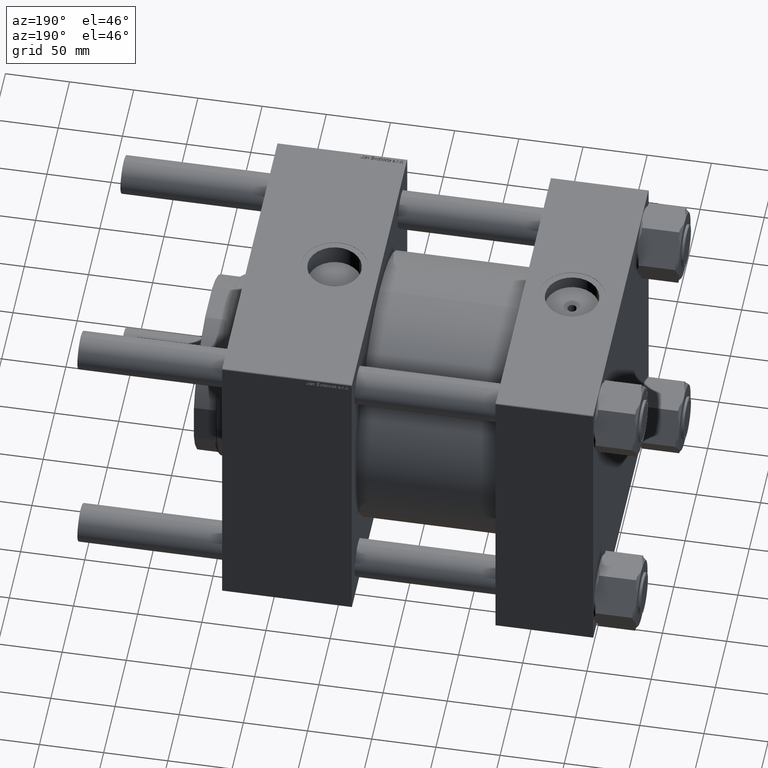
[diagram: clean part render]
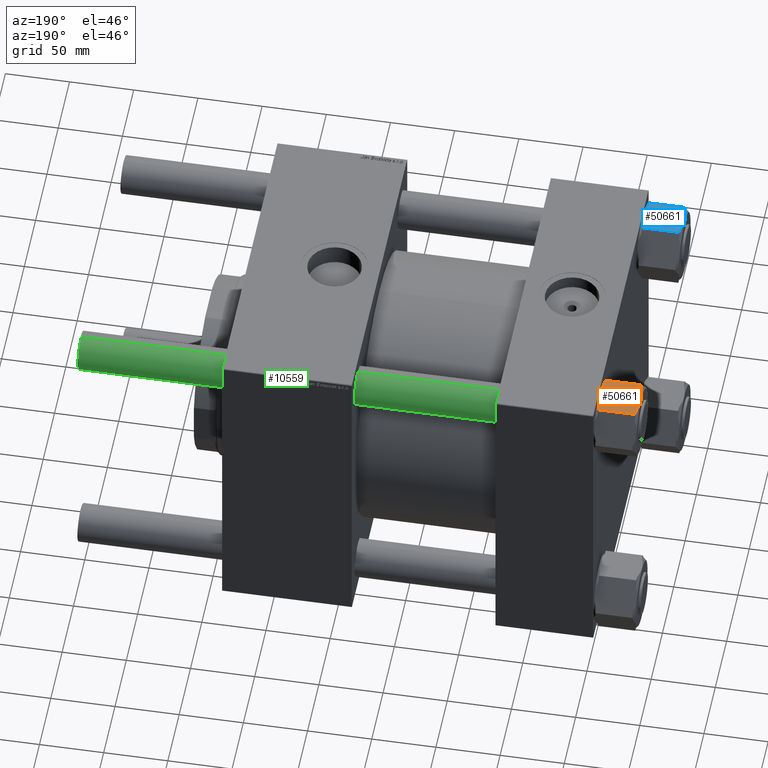
[diagram: same view with three faces highlighted in distinct colors, each labeled with its STEP entity id]
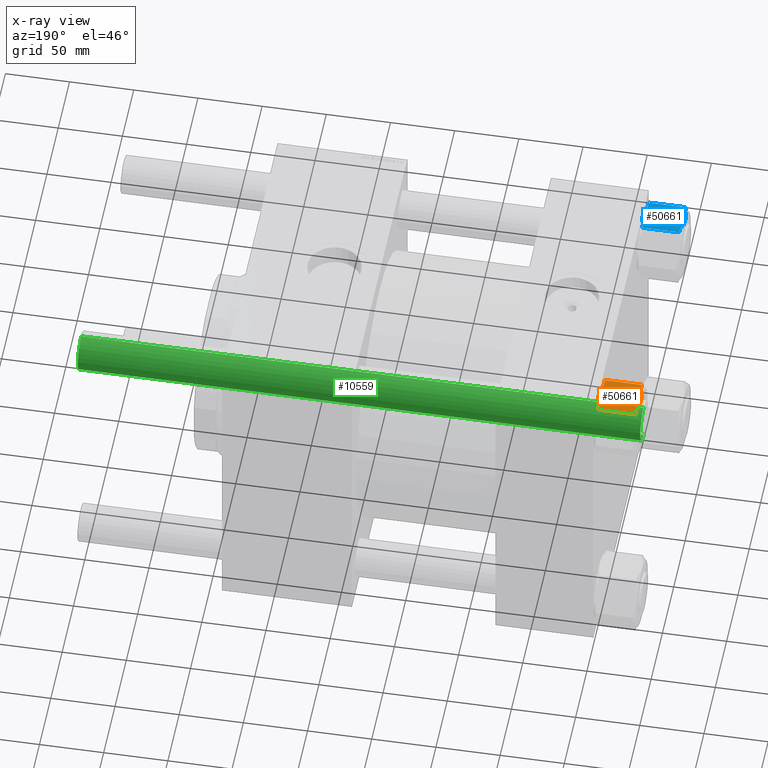
[diagram: x-ray of the same camera — body ghosted, the three highlighted faces saturated]
A machine part, auxiliary view with three faces highlighted in distinct colors.
The next image is the same camera in x-ray (body ghosted, the three faces saturated) — at least one of them is partly hidden behind the body in this view.
Their STEP definitions:

[orange] entity #50661 — the highlighted planar face has unit normal (-0, -0.0859, -0.9963).
#571 = CARTESIAN_POINT ( 'NONE',  ( 3.004629197474319246E-15, -25.65167246009509228, 0.000000000000000000 ) ) ;
#1403 = ORIENTED_EDGE ( 'NONE', *, *, #30554, .F. ) ;
#1675 = CARTESIAN_POINT ( 'NONE',  ( 8.224817531128856274, -25.65167246009507807, -31.71672309237984777 ) ) ;
#1735 = PLANE ( 'NONE',  #51795 ) ;
#2506 = CARTESIAN_POINT ( 'NONE',  ( -6.099955639268604735, -25.65167246009508162, -0.7018505742978484729 ) ) ;
#4588 = LINE ( 'NONE', #22280, #19650 ) ;
#4814 = DIRECTION ( 'NONE',  ( -0.000000000000000000, -0.000000000000000000, 1.000000000000000000 ) ) ;
#5900 = CARTESIAN_POINT ( 'NONE',  ( 14.81000000000000760, -25.65167246009507451, -2.000000000000001776 ) ) ;
#6101 = ORIENTED_EDGE ( 'NONE', *, *, #11622, .F. ) ;
#6303 = CARTESIAN_POINT ( 'NONE',  ( 3.520663271550341200, -25.65167246009507807, -32.81439241817540875 ) ) ;
#7232 = CARTESIAN_POINT ( 'NONE',  ( 8.669316105214891266, -25.65167246009508162, -1.381753344690851870 ) ) ;
#8026 = CARTESIAN_POINT ( 'NONE',  ( -0.4430237275646163875, -25.65167246009507807, -33.00000000000001421 ) ) ;
#8306 = ORIENTED_EDGE ( 'NONE', *, *, #36981, .F. ) ;
#8787 = EDGE_CURVE ( 'NONE', #10520, #10960, #33301, .T. ) ;
#9508 = DIRECTION ( 'NONE',  ( 1.000000000000000000, 1.171319024967458697E-16, -0.000000000000000000 ) ) ;
#9674 = LINE ( 'NONE', #5900, #9699 ) ;
#9699 = VECTOR ( 'NONE', #31733, 1000.000000000000000 ) ;
#10520 = VERTEX_POINT ( 'NONE', #29928 ) ;
#10960 = VERTEX_POINT ( 'NONE', #33915 ) ;
#11622 = EDGE_CURVE ( 'NONE', #19183, #15396, #44728, .T. ) ;
#11758 = CARTESIAN_POINT ( 'NONE',  ( -8.224817531128843839, -25.65167246009508517, -1.283276907620148899 ) ) ;
#12952 = CARTESIAN_POINT ( 'NONE',  ( -3.538636345949318418, -25.65167246009508517, -32.77183165578529866 ) ) ;
#13653 = ORIENTED_EDGE ( 'NONE', *, *, #33673, .F. ) ;
#13729 = CARTESIAN_POINT ( 'NONE',  ( 2.220425330063965585, -25.65167246009507807, -0.09221160706299975918 ) ) ;
#13806 = CARTESIAN_POINT ( 'NONE',  ( -14.81000000000000583, -25.65167246009507807, -33.00000000000000000 ) ) ;
#14353 = VECTOR ( 'NONE', #31359, 1000.000000000000000 ) ;
#14706 = CARTESIAN_POINT ( 'NONE',  ( 10.32505156599140683, -25.65167246009507451, -31.00000000000000000 ) ) ;
#15019 = CARTESIAN_POINT ( 'NONE',  ( 9.909542374435250878, -25.65167246009507807, -31.15514988596627433 ) ) ;
#15302 = CARTESIAN_POINT ( 'NONE',  ( 6.953324275881632488, -25.65167246009506385, -32.08667077423702807 ) ) ;
#15396 = VERTEX_POINT ( 'NONE', #30345 ) ;
#15557 = CARTESIAN_POINT ( 'NONE',  ( -9.909542374435234890, -25.65167246009508162, -1.844850114033720345 ) ) ;
#15826 = EDGE_CURVE ( 'NONE', #42296, #27409, #4588, .T. ) ;
#15893 = DIRECTION ( 'NONE',  ( -0.000000000000000000, -0.000000000000000000, 1.000000000000000000 ) ) ;
#15935 = CARTESIAN_POINT ( 'NONE',  ( -10.32505156599139973, -25.65167246009507451, -2.000000000000000000 ) ) ;
#16408 = CARTESIAN_POINT ( 'NONE',  ( -3.520663271550332318, -25.65167246009508162, -0.1856075818245811471 ) ) ;
#17039 = EDGE_CURVE ( 'NONE', #34562, #49997, #24954, .T. ) ;
#18079 = CARTESIAN_POINT ( 'NONE',  ( 3.004629197474319246E-15, -25.65167246009509228, 0.000000000000000000 ) ) ;
#19183 = VERTEX_POINT ( 'NONE', #571 ) ;
#19458 = CARTESIAN_POINT ( 'NONE',  ( 14.81000000000000760, -25.65167246009507451, -31.00000000000000000 ) ) ;
#19650 = VECTOR ( 'NONE', #9508, 1000.000000000000000 ) ;
#20307 = CARTESIAN_POINT ( 'NONE',  ( 6.986203245587496724, -25.65167246009508162, -0.8809313092508250786 ) ) ;
#22280 = CARTESIAN_POINT ( 'NONE',  ( 14.81000000000000760, -25.65167246009507451, -2.000000000000001776 ) ) ;
#22852 = CARTESIAN_POINT ( 'NONE',  ( 3.004629197474318457E-15, -25.65167246009508517, -33.00000000000000000 ) ) ;
#23511 = DIRECTION ( 'NONE',  ( -1.000000000000000000, -1.171319024967458697E-16, 0.000000000000000000 ) ) ;
#23998 = CARTESIAN_POINT ( 'NONE',  ( 6.099955639268611840, -25.65167246009507096, -32.29814942570214242 ) ) ;
#24477 = ORIENTED_EDGE ( 'NONE', *, *, #45857, .F. ) ;
#24954 = B_SPLINE_CURVE_WITH_KNOTS ( 'NONE', 3,
 ( #34991, #8026, #43696, #47772, #39334, #12952, #47499, #52132, #52695, #30093 ),
 .UNSPECIFIED., .F., .F.,
 ( 4, 2, 2, 2, 4 ),
 ( 0.05238037947086572610, 0.05369742002259651065, 0.05501446057432728826, 0.05764854167778885735, 0.06291670388471200248 ),
 .UNSPECIFIED. ) ;
#25550 = CARTESIAN_POINT ( 'NONE',  ( -10.32505156599139973, -25.65167246009507451, -31.00000000000000000 ) ) ;
#27409 = VERTEX_POINT ( 'NONE', #15935 ) ;
#29402 = ORIENTED_EDGE ( 'NONE', *, *, #53433, .F. ) ;
#29928 = CARTESIAN_POINT ( 'NONE',  ( 14.81000000000000760, -25.65167246009507451, -31.00000000000000000 ) ) ;
#30093 = CARTESIAN_POINT ( 'NONE',  ( -10.32505156599139973, -25.65167246009507451, -31.00000000000000000 ) ) ;
#30345 = CARTESIAN_POINT ( 'NONE',  ( 10.32505156599140683, -25.65167246009507451, -2.000000000000000000 ) ) ;
#30554 = EDGE_CURVE ( 'NONE', #27409, #19183, #56427, .T. ) ;
#31133 = CARTESIAN_POINT ( 'NONE',  ( 0.4430237275646299322, -25.65167246009507807, 1.209111297773939011E-14 ) ) ;
#31359 = DIRECTION ( 'NONE',  ( -1.000000000000000000, -1.171319024967458697E-16, 0.000000000000000000 ) ) ;
#31421 = CARTESIAN_POINT ( 'NONE',  ( 3.538636345949333517, -25.65167246009507807, -0.2281683442147109386 ) ) ;
#31733 = DIRECTION ( 'NONE',  ( 1.000000000000000000, 1.171319024967458697E-16, -0.000000000000000000 ) ) ;
#31904 = DIRECTION ( 'NONE',  ( -1.171319024967458697E-16, 1.000000000000000000, 0.000000000000000000 ) ) ;
#32202 = VECTOR ( 'NONE', #4814, 1000.000000000000000 ) ;
#32714 = CARTESIAN_POINT ( 'NONE',  ( 9.489356881974131852, -25.65167246009507451, -31.30393777142523248 ) ) ;
#32999 = CARTESIAN_POINT ( 'NONE',  ( 10.32505156599140683, -25.65167246009507451, -31.00000000000000000 ) ) ;
#33301 = LINE ( 'NONE', #55631, #45356 ) ;
#33673 = EDGE_CURVE ( 'NONE', #10520, #47778, #39479, .T. ) ;
#33915 = CARTESIAN_POINT ( 'NONE',  ( 14.81000000000000760, -25.65167246009507451, -2.000000000000001776 ) ) ;
#34562 = VERTEX_POINT ( 'NONE', #22852 ) ;
#34991 = CARTESIAN_POINT ( 'NONE',  ( 3.004629197474318457E-15, -25.65167246009508517, -33.00000000000000000 ) ) ;
#35306 = CARTESIAN_POINT ( 'NONE',  ( -14.81000000000000583, -25.65167246009507807, -31.00000000000000000 ) ) ;
#35970 = FACE_OUTER_BOUND ( 'NONE', #37940, .T. ) ;
#36925 = CARTESIAN_POINT ( 'NONE',  ( 10.32505156599140683, -25.65167246009507451, -2.000000000000000000 ) ) ;
#36981 = EDGE_CURVE ( 'NONE', #15396, #10960, #9674, .T. ) ;
#37883 = CARTESIAN_POINT ( 'NONE',  ( -9.489356881974121194, -25.65167246009507451, -1.696062228574763742 ) ) ;
#37940 = EDGE_LOOP ( 'NONE', ( #13653, #49119, #8306, #6101, #1403, #42270, #24477, #51728, #47194, #29402 ) ) ;
#38164 = CARTESIAN_POINT ( 'NONE',  ( -6.953324275881620053, -25.65167246009508162, -0.9133292257629657129 ) ) ;
#39334 = CARTESIAN_POINT ( 'NONE',  ( -2.220425330063951375, -25.65167246009507807, -32.90778839293698610 ) ) ;
#39479 = LINE ( 'NONE', #56911, #14353 ) ;
#39806 = CARTESIAN_POINT ( 'NONE',  ( -14.81000000000000583, -25.65167246009507807, -2.000000000000001776 ) ) ;
#41412 = CARTESIAN_POINT ( 'NONE',  ( 8.647222686001271086, -25.65167246009507451, -31.58462314271101690 ) ) ;
#41790 = EDGE_CURVE ( 'NONE', #49997, #56199, #50495, .T. ) ;
#42270 = ORIENTED_EDGE ( 'NONE', *, *, #15826, .F. ) ;
#42296 = VERTEX_POINT ( 'NONE', #39806 ) ;
#43696 = CARTESIAN_POINT ( 'NONE',  ( -0.8893174470413348631, -25.65167246009507807, -32.98842907433984806 ) ) ;
#44462 = CARTESIAN_POINT ( 'NONE',  ( 1.778491183643254647, -25.65167246009507807, -0.05774617287276616329 ) ) ;
#44728 = B_SPLINE_CURVE_WITH_KNOTS ( 'NONE', 3,
 ( #18079, #31133, #48826, #44462, #13729, #31421, #49123, #20307, #7232, #36925 ),
 .UNSPECIFIED., .F., .F.,
 ( 4, 2, 2, 2, 4 ),
 ( 0.05238037947086573998, 0.05369742002259652452, 0.05501446057432730907, 0.05764854167778887817, 0.06291670388471201636 ),
 .UNSPECIFIED. ) ;
#45025 = VECTOR ( 'NONE', #23511, 1000.000000000000000 ) ;
#45356 = VECTOR ( 'NONE', #15893, 1000.000000000000000 ) ;
#45857 = EDGE_CURVE ( 'NONE', #56199, #42296, #49482, .T. ) ;
#46307 = CARTESIAN_POINT ( 'NONE',  ( -1.775396627771425262, -25.65167246009507451, 1.230870633041182272E-14 ) ) ;
#46626 = CARTESIAN_POINT ( 'NONE',  ( 3.004629197474318457E-15, -25.65167246009508517, -33.00000000000000000 ) ) ;
#47152 = CARTESIAN_POINT ( 'NONE',  ( -10.32505156599139973, -25.65167246009507451, -2.000000000000000000 ) ) ;
#47194 = ORIENTED_EDGE ( 'NONE', *, *, #17039, .F. ) ;
#47499 = CARTESIAN_POINT ( 'NONE',  ( -4.407316998488252757, -25.65167246009508162, -32.63775935819370488 ) ) ;
#47772 = CARTESIAN_POINT ( 'NONE',  ( -1.778491183643239326, -25.65167246009507807, -32.94225382712721739 ) ) ;
#47778 = VERTEX_POINT ( 'NONE', #14706 ) ;
#48826 = CARTESIAN_POINT ( 'NONE',  ( 0.8893174470413506283, -25.65167246009507451, -0.01157092566015176412 ) ) ;
#49119 = ORIENTED_EDGE ( 'NONE', *, *, #8787, .T. ) ;
#49123 = CARTESIAN_POINT ( 'NONE',  ( 4.407316998488265192, -25.65167246009507807, -0.3622406418062982247 ) ) ;
#49482 = LINE ( 'NONE', #13806, #32202 ) ;
#49891 = DIRECTION ( 'NONE',  ( -1.000000000000000000, -1.171319024967458697E-16, 0.000000000000000000 ) ) ;
#49997 = VERTEX_POINT ( 'NONE', #25550 ) ;
#50184 = CARTESIAN_POINT ( 'NONE',  ( 14.81000000000000760, -25.65167246009507451, -33.00000000000000000 ) ) ;
#50495 = LINE ( 'NONE', #19458, #45025 ) ;
#50661 = ADVANCED_FACE ( 'NONE', ( #35970 ), #1735, .F. ) ;
#50663 = CARTESIAN_POINT ( 'NONE',  ( 3.004629197474319246E-15, -25.65167246009509228, 0.000000000000000000 ) ) ;
#50697 = CARTESIAN_POINT ( 'NONE',  ( 1.775396627771436142, -25.65167246009507451, -33.00000000000000711 ) ) ;
#51728 = ORIENTED_EDGE ( 'NONE', *, *, #41790, .F. ) ;
#51795 = AXIS2_PLACEMENT_3D ( 'NONE', #50184, #31904, #49891 ) ;
#52132 = CARTESIAN_POINT ( 'NONE',  ( -6.986203245587481625, -25.65167246009507451, -32.11906869074918092 ) ) ;
#52156 = B_SPLINE_CURVE_WITH_KNOTS ( 'NONE', 3,
 ( #32999, #15019, #32714, #41412, #1675, #15302, #23998, #6303, #50697, #46626 ),
 .UNSPECIFIED., .F., .F.,
 ( 4, 2, 2, 2, 4 ),
 ( 0.04182442407301415616, 0.04314391849774560500, 0.04446341292247705385, 0.04710240177193994460, 0.05238037947086572610 ),
 .UNSPECIFIED. ) ;
#52695 = CARTESIAN_POINT ( 'NONE',  ( -8.669316105214878831, -25.65167246009508162, -31.61824665530915013 ) ) ;
#53433 = EDGE_CURVE ( 'NONE', #47778, #34562, #52156, .T. ) ;
#55631 = CARTESIAN_POINT ( 'NONE',  ( 14.81000000000000760, -25.65167246009507451, -33.00000000000000000 ) ) ;
#56145 = CARTESIAN_POINT ( 'NONE',  ( -8.647222686001263980, -25.65167246009507807, -1.415376857288984436 ) ) ;
#56199 = VERTEX_POINT ( 'NONE', #35306 ) ;
#56427 = B_SPLINE_CURVE_WITH_KNOTS ( 'NONE', 3,
 ( #47152, #15557, #37883, #56145, #11758, #38164, #2506, #16408, #46307, #50663 ),
 .UNSPECIFIED., .F., .F.,
 ( 4, 2, 2, 2, 4 ),
 ( 0.04182442407301416309, 0.04314391849774561194, 0.04446341292247706078, 0.04710240177193995154, 0.05238037947086573998 ),
 .UNSPECIFIED. ) ;
#56911 = CARTESIAN_POINT ( 'NONE',  ( 14.81000000000000760, -25.65167246009507451, -31.00000000000000000 ) ) ;

[blue] entity #50661 — the highlighted planar face has unit normal (-0, 0.0859, -0.9963).
#571 = CARTESIAN_POINT ( 'NONE',  ( 3.004629197474319246E-15, -25.65167246009509228, 0.000000000000000000 ) ) ;
#1403 = ORIENTED_EDGE ( 'NONE', *, *, #30554, .F. ) ;
#1675 = CARTESIAN_POINT ( 'NONE',  ( 8.224817531128856274, -25.65167246009507807, -31.71672309237984777 ) ) ;
#1735 = PLANE ( 'NONE',  #51795 ) ;
#2506 = CARTESIAN_POINT ( 'NONE',  ( -6.099955639268604735, -25.65167246009508162, -0.7018505742978484729 ) ) ;
#4588 = LINE ( 'NONE', #22280, #19650 ) ;
#4814 = DIRECTION ( 'NONE',  ( -0.000000000000000000, -0.000000000000000000, 1.000000000000000000 ) ) ;
#5900 = CARTESIAN_POINT ( 'NONE',  ( 14.81000000000000760, -25.65167246009507451, -2.000000000000001776 ) ) ;
#6101 = ORIENTED_EDGE ( 'NONE', *, *, #11622, .F. ) ;
#6303 = CARTESIAN_POINT ( 'NONE',  ( 3.520663271550341200, -25.65167246009507807, -32.81439241817540875 ) ) ;
#7232 = CARTESIAN_POINT ( 'NONE',  ( 8.669316105214891266, -25.65167246009508162, -1.381753344690851870 ) ) ;
#8026 = CARTESIAN_POINT ( 'NONE',  ( -0.4430237275646163875, -25.65167246009507807, -33.00000000000001421 ) ) ;
#8306 = ORIENTED_EDGE ( 'NONE', *, *, #36981, .F. ) ;
#8787 = EDGE_CURVE ( 'NONE', #10520, #10960, #33301, .T. ) ;
#9508 = DIRECTION ( 'NONE',  ( 1.000000000000000000, 1.171319024967458697E-16, -0.000000000000000000 ) ) ;
#9674 = LINE ( 'NONE', #5900, #9699 ) ;
#9699 = VECTOR ( 'NONE', #31733, 1000.000000000000000 ) ;
#10520 = VERTEX_POINT ( 'NONE', #29928 ) ;
#10960 = VERTEX_POINT ( 'NONE', #33915 ) ;
#11622 = EDGE_CURVE ( 'NONE', #19183, #15396, #44728, .T. ) ;
#11758 = CARTESIAN_POINT ( 'NONE',  ( -8.224817531128843839, -25.65167246009508517, -1.283276907620148899 ) ) ;
#12952 = CARTESIAN_POINT ( 'NONE',  ( -3.538636345949318418, -25.65167246009508517, -32.77183165578529866 ) ) ;
#13653 = ORIENTED_EDGE ( 'NONE', *, *, #33673, .F. ) ;
#13729 = CARTESIAN_POINT ( 'NONE',  ( 2.220425330063965585, -25.65167246009507807, -0.09221160706299975918 ) ) ;
#13806 = CARTESIAN_POINT ( 'NONE',  ( -14.81000000000000583, -25.65167246009507807, -33.00000000000000000 ) ) ;
#14353 = VECTOR ( 'NONE', #31359, 1000.000000000000000 ) ;
#14706 = CARTESIAN_POINT ( 'NONE',  ( 10.32505156599140683, -25.65167246009507451, -31.00000000000000000 ) ) ;
#15019 = CARTESIAN_POINT ( 'NONE',  ( 9.909542374435250878, -25.65167246009507807, -31.15514988596627433 ) ) ;
#15302 = CARTESIAN_POINT ( 'NONE',  ( 6.953324275881632488, -25.65167246009506385, -32.08667077423702807 ) ) ;
#15396 = VERTEX_POINT ( 'NONE', #30345 ) ;
#15557 = CARTESIAN_POINT ( 'NONE',  ( -9.909542374435234890, -25.65167246009508162, -1.844850114033720345 ) ) ;
#15826 = EDGE_CURVE ( 'NONE', #42296, #27409, #4588, .T. ) ;
#15893 = DIRECTION ( 'NONE',  ( -0.000000000000000000, -0.000000000000000000, 1.000000000000000000 ) ) ;
#15935 = CARTESIAN_POINT ( 'NONE',  ( -10.32505156599139973, -25.65167246009507451, -2.000000000000000000 ) ) ;
#16408 = CARTESIAN_POINT ( 'NONE',  ( -3.520663271550332318, -25.65167246009508162, -0.1856075818245811471 ) ) ;
#17039 = EDGE_CURVE ( 'NONE', #34562, #49997, #24954, .T. ) ;
#18079 = CARTESIAN_POINT ( 'NONE',  ( 3.004629197474319246E-15, -25.65167246009509228, 0.000000000000000000 ) ) ;
#19183 = VERTEX_POINT ( 'NONE', #571 ) ;
#19458 = CARTESIAN_POINT ( 'NONE',  ( 14.81000000000000760, -25.65167246009507451, -31.00000000000000000 ) ) ;
#19650 = VECTOR ( 'NONE', #9508, 1000.000000000000000 ) ;
#20307 = CARTESIAN_POINT ( 'NONE',  ( 6.986203245587496724, -25.65167246009508162, -0.8809313092508250786 ) ) ;
#22280 = CARTESIAN_POINT ( 'NONE',  ( 14.81000000000000760, -25.65167246009507451, -2.000000000000001776 ) ) ;
#22852 = CARTESIAN_POINT ( 'NONE',  ( 3.004629197474318457E-15, -25.65167246009508517, -33.00000000000000000 ) ) ;
#23511 = DIRECTION ( 'NONE',  ( -1.000000000000000000, -1.171319024967458697E-16, 0.000000000000000000 ) ) ;
#23998 = CARTESIAN_POINT ( 'NONE',  ( 6.099955639268611840, -25.65167246009507096, -32.29814942570214242 ) ) ;
#24477 = ORIENTED_EDGE ( 'NONE', *, *, #45857, .F. ) ;
#24954 = B_SPLINE_CURVE_WITH_KNOTS ( 'NONE', 3,
 ( #34991, #8026, #43696, #47772, #39334, #12952, #47499, #52132, #52695, #30093 ),
 .UNSPECIFIED., .F., .F.,
 ( 4, 2, 2, 2, 4 ),
 ( 0.05238037947086572610, 0.05369742002259651065, 0.05501446057432728826, 0.05764854167778885735, 0.06291670388471200248 ),
 .UNSPECIFIED. ) ;
#25550 = CARTESIAN_POINT ( 'NONE',  ( -10.32505156599139973, -25.65167246009507451, -31.00000000000000000 ) ) ;
#27409 = VERTEX_POINT ( 'NONE', #15935 ) ;
#29402 = ORIENTED_EDGE ( 'NONE', *, *, #53433, .F. ) ;
#29928 = CARTESIAN_POINT ( 'NONE',  ( 14.81000000000000760, -25.65167246009507451, -31.00000000000000000 ) ) ;
#30093 = CARTESIAN_POINT ( 'NONE',  ( -10.32505156599139973, -25.65167246009507451, -31.00000000000000000 ) ) ;
#30345 = CARTESIAN_POINT ( 'NONE',  ( 10.32505156599140683, -25.65167246009507451, -2.000000000000000000 ) ) ;
#30554 = EDGE_CURVE ( 'NONE', #27409, #19183, #56427, .T. ) ;
#31133 = CARTESIAN_POINT ( 'NONE',  ( 0.4430237275646299322, -25.65167246009507807, 1.209111297773939011E-14 ) ) ;
#31359 = DIRECTION ( 'NONE',  ( -1.000000000000000000, -1.171319024967458697E-16, 0.000000000000000000 ) ) ;
#31421 = CARTESIAN_POINT ( 'NONE',  ( 3.538636345949333517, -25.65167246009507807, -0.2281683442147109386 ) ) ;
#31733 = DIRECTION ( 'NONE',  ( 1.000000000000000000, 1.171319024967458697E-16, -0.000000000000000000 ) ) ;
#31904 = DIRECTION ( 'NONE',  ( -1.171319024967458697E-16, 1.000000000000000000, 0.000000000000000000 ) ) ;
#32202 = VECTOR ( 'NONE', #4814, 1000.000000000000000 ) ;
#32714 = CARTESIAN_POINT ( 'NONE',  ( 9.489356881974131852, -25.65167246009507451, -31.30393777142523248 ) ) ;
#32999 = CARTESIAN_POINT ( 'NONE',  ( 10.32505156599140683, -25.65167246009507451, -31.00000000000000000 ) ) ;
#33301 = LINE ( 'NONE', #55631, #45356 ) ;
#33673 = EDGE_CURVE ( 'NONE', #10520, #47778, #39479, .T. ) ;
#33915 = CARTESIAN_POINT ( 'NONE',  ( 14.81000000000000760, -25.65167246009507451, -2.000000000000001776 ) ) ;
#34562 = VERTEX_POINT ( 'NONE', #22852 ) ;
#34991 = CARTESIAN_POINT ( 'NONE',  ( 3.004629197474318457E-15, -25.65167246009508517, -33.00000000000000000 ) ) ;
#35306 = CARTESIAN_POINT ( 'NONE',  ( -14.81000000000000583, -25.65167246009507807, -31.00000000000000000 ) ) ;
#35970 = FACE_OUTER_BOUND ( 'NONE', #37940, .T. ) ;
#36925 = CARTESIAN_POINT ( 'NONE',  ( 10.32505156599140683, -25.65167246009507451, -2.000000000000000000 ) ) ;
#36981 = EDGE_CURVE ( 'NONE', #15396, #10960, #9674, .T. ) ;
#37883 = CARTESIAN_POINT ( 'NONE',  ( -9.489356881974121194, -25.65167246009507451, -1.696062228574763742 ) ) ;
#37940 = EDGE_LOOP ( 'NONE', ( #13653, #49119, #8306, #6101, #1403, #42270, #24477, #51728, #47194, #29402 ) ) ;
#38164 = CARTESIAN_POINT ( 'NONE',  ( -6.953324275881620053, -25.65167246009508162, -0.9133292257629657129 ) ) ;
#39334 = CARTESIAN_POINT ( 'NONE',  ( -2.220425330063951375, -25.65167246009507807, -32.90778839293698610 ) ) ;
#39479 = LINE ( 'NONE', #56911, #14353 ) ;
#39806 = CARTESIAN_POINT ( 'NONE',  ( -14.81000000000000583, -25.65167246009507807, -2.000000000000001776 ) ) ;
#41412 = CARTESIAN_POINT ( 'NONE',  ( 8.647222686001271086, -25.65167246009507451, -31.58462314271101690 ) ) ;
#41790 = EDGE_CURVE ( 'NONE', #49997, #56199, #50495, .T. ) ;
#42270 = ORIENTED_EDGE ( 'NONE', *, *, #15826, .F. ) ;
#42296 = VERTEX_POINT ( 'NONE', #39806 ) ;
#43696 = CARTESIAN_POINT ( 'NONE',  ( -0.8893174470413348631, -25.65167246009507807, -32.98842907433984806 ) ) ;
#44462 = CARTESIAN_POINT ( 'NONE',  ( 1.778491183643254647, -25.65167246009507807, -0.05774617287276616329 ) ) ;
#44728 = B_SPLINE_CURVE_WITH_KNOTS ( 'NONE', 3,
 ( #18079, #31133, #48826, #44462, #13729, #31421, #49123, #20307, #7232, #36925 ),
 .UNSPECIFIED., .F., .F.,
 ( 4, 2, 2, 2, 4 ),
 ( 0.05238037947086573998, 0.05369742002259652452, 0.05501446057432730907, 0.05764854167778887817, 0.06291670388471201636 ),
 .UNSPECIFIED. ) ;
#45025 = VECTOR ( 'NONE', #23511, 1000.000000000000000 ) ;
#45356 = VECTOR ( 'NONE', #15893, 1000.000000000000000 ) ;
#45857 = EDGE_CURVE ( 'NONE', #56199, #42296, #49482, .T. ) ;
#46307 = CARTESIAN_POINT ( 'NONE',  ( -1.775396627771425262, -25.65167246009507451, 1.230870633041182272E-14 ) ) ;
#46626 = CARTESIAN_POINT ( 'NONE',  ( 3.004629197474318457E-15, -25.65167246009508517, -33.00000000000000000 ) ) ;
#47152 = CARTESIAN_POINT ( 'NONE',  ( -10.32505156599139973, -25.65167246009507451, -2.000000000000000000 ) ) ;
#47194 = ORIENTED_EDGE ( 'NONE', *, *, #17039, .F. ) ;
#47499 = CARTESIAN_POINT ( 'NONE',  ( -4.407316998488252757, -25.65167246009508162, -32.63775935819370488 ) ) ;
#47772 = CARTESIAN_POINT ( 'NONE',  ( -1.778491183643239326, -25.65167246009507807, -32.94225382712721739 ) ) ;
#47778 = VERTEX_POINT ( 'NONE', #14706 ) ;
#48826 = CARTESIAN_POINT ( 'NONE',  ( 0.8893174470413506283, -25.65167246009507451, -0.01157092566015176412 ) ) ;
#49119 = ORIENTED_EDGE ( 'NONE', *, *, #8787, .T. ) ;
#49123 = CARTESIAN_POINT ( 'NONE',  ( 4.407316998488265192, -25.65167246009507807, -0.3622406418062982247 ) ) ;
#49482 = LINE ( 'NONE', #13806, #32202 ) ;
#49891 = DIRECTION ( 'NONE',  ( -1.000000000000000000, -1.171319024967458697E-16, 0.000000000000000000 ) ) ;
#49997 = VERTEX_POINT ( 'NONE', #25550 ) ;
#50184 = CARTESIAN_POINT ( 'NONE',  ( 14.81000000000000760, -25.65167246009507451, -33.00000000000000000 ) ) ;
#50495 = LINE ( 'NONE', #19458, #45025 ) ;
#50661 = ADVANCED_FACE ( 'NONE', ( #35970 ), #1735, .F. ) ;
#50663 = CARTESIAN_POINT ( 'NONE',  ( 3.004629197474319246E-15, -25.65167246009509228, 0.000000000000000000 ) ) ;
#50697 = CARTESIAN_POINT ( 'NONE',  ( 1.775396627771436142, -25.65167246009507451, -33.00000000000000711 ) ) ;
#51728 = ORIENTED_EDGE ( 'NONE', *, *, #41790, .F. ) ;
#51795 = AXIS2_PLACEMENT_3D ( 'NONE', #50184, #31904, #49891 ) ;
#52132 = CARTESIAN_POINT ( 'NONE',  ( -6.986203245587481625, -25.65167246009507451, -32.11906869074918092 ) ) ;
#52156 = B_SPLINE_CURVE_WITH_KNOTS ( 'NONE', 3,
 ( #32999, #15019, #32714, #41412, #1675, #15302, #23998, #6303, #50697, #46626 ),
 .UNSPECIFIED., .F., .F.,
 ( 4, 2, 2, 2, 4 ),
 ( 0.04182442407301415616, 0.04314391849774560500, 0.04446341292247705385, 0.04710240177193994460, 0.05238037947086572610 ),
 .UNSPECIFIED. ) ;
#52695 = CARTESIAN_POINT ( 'NONE',  ( -8.669316105214878831, -25.65167246009508162, -31.61824665530915013 ) ) ;
#53433 = EDGE_CURVE ( 'NONE', #47778, #34562, #52156, .T. ) ;
#55631 = CARTESIAN_POINT ( 'NONE',  ( 14.81000000000000760, -25.65167246009507451, -33.00000000000000000 ) ) ;
#56145 = CARTESIAN_POINT ( 'NONE',  ( -8.647222686001263980, -25.65167246009507807, -1.415376857288984436 ) ) ;
#56199 = VERTEX_POINT ( 'NONE', #35306 ) ;
#56427 = B_SPLINE_CURVE_WITH_KNOTS ( 'NONE', 3,
 ( #47152, #15557, #37883, #56145, #11758, #38164, #2506, #16408, #46307, #50663 ),
 .UNSPECIFIED., .F., .F.,
 ( 4, 2, 2, 2, 4 ),
 ( 0.04182442407301416309, 0.04314391849774561194, 0.04446341292247706078, 0.04710240177193995154, 0.05238037947086573998 ),
 .UNSPECIFIED. ) ;
#56911 = CARTESIAN_POINT ( 'NONE',  ( 14.81000000000000760, -25.65167246009507451, -31.00000000000000000 ) ) ;

[green] entity #10559 — the highlighted cylindrical surface (edge-blend (fillet) strip) has radius 15 mm, axis along (1, -0, -0).
#47 = AXIS2_PLACEMENT_3D ( 'NONE', #50761, #7222, #14798 ) ;
#475 = LINE ( 'NONE', #17597, #50044 ) ;
#3893 = DIRECTION ( 'NONE',  ( -0.000000000000000000, -0.000000000000000000, 1.000000000000000000 ) ) ;
#5020 = DIRECTION ( 'NONE',  ( 1.000000000000000000, 0.000000000000000000, 0.000000000000000000 ) ) ;
#7222 = DIRECTION ( 'NONE',  ( 0.000000000000000000, 0.000000000000000000, -1.000000000000000000 ) ) ;
#8818 = VERTEX_POINT ( 'NONE', #32444 ) ;
#9728 = EDGE_CURVE ( 'NONE', #39196, #25438, #475, .T. ) ;
#10244 = CIRCLE ( 'NONE', #47, 15.00000000000000000 ) ;
#10559 = ADVANCED_FACE ( 'NONE', ( #16576 ), #21209, .T. ) ;
#10834 = EDGE_CURVE ( 'NONE', #38154, #39196, #10244, .T. ) ;
#12472 = EDGE_CURVE ( 'NONE', #38154, #8818, #32599, .T. ) ;
#13668 = CARTESIAN_POINT ( 'NONE',  ( -15.00000000000000000, 0.000000000000000000, 438.5000000000000000 ) ) ;
#14798 = DIRECTION ( 'NONE',  ( 1.000000000000000000, 0.000000000000000000, 0.000000000000000000 ) ) ;
#16576 = FACE_OUTER_BOUND ( 'NONE', #45933, .T. ) ;
#17597 = CARTESIAN_POINT ( 'NONE',  ( 15.00000000000000000, 1.836970198721029589E-15, 439.0000000000000000 ) ) ;
#21209 = CYLINDRICAL_SURFACE ( 'NONE', #40752, 15.00000000000000000 ) ;
#22049 = CARTESIAN_POINT ( 'NONE',  ( 0.000000000000000000, 0.000000000000000000, 439.0000000000000000 ) ) ;
#25438 = VERTEX_POINT ( 'NONE', #50313 ) ;
#25922 = CARTESIAN_POINT ( 'NONE',  ( 0.000000000000000000, 0.000000000000000000, 0.5000000000000559552 ) ) ;
#27193 = CIRCLE ( 'NONE', #35505, 15.00000000000000000 ) ;
#27661 = CARTESIAN_POINT ( 'NONE',  ( -15.00000000000000000, 0.000000000000000000, 439.0000000000000000 ) ) ;
#28235 = DIRECTION ( 'NONE',  ( -0.000000000000000000, -0.000000000000000000, -1.000000000000000000 ) ) ;
#28979 = EDGE_CURVE ( 'NONE', #25438, #8818, #27193, .T. ) ;
#30673 = ORIENTED_EDGE ( 'NONE', *, *, #12472, .F. ) ;
#32444 = CARTESIAN_POINT ( 'NONE',  ( -15.00000000000000000, 0.000000000000000000, 0.5000000000000559552 ) ) ;
#32599 = LINE ( 'NONE', #27661, #54768 ) ;
#34264 = DIRECTION ( 'NONE',  ( -0.000000000000000000, -0.000000000000000000, -1.000000000000000000 ) ) ;
#35273 = ORIENTED_EDGE ( 'NONE', *, *, #28979, .T. ) ;
#35505 = AXIS2_PLACEMENT_3D ( 'NONE', #25922, #3893, #5020 ) ;
#38154 = VERTEX_POINT ( 'NONE', #13668 ) ;
#39196 = VERTEX_POINT ( 'NONE', #53570 ) ;
#40752 = AXIS2_PLACEMENT_3D ( 'NONE', #22049, #34264, #52811 ) ;
#42930 = ORIENTED_EDGE ( 'NONE', *, *, #9728, .T. ) ;
#42952 = ORIENTED_EDGE ( 'NONE', *, *, #10834, .T. ) ;
#45933 = EDGE_LOOP ( 'NONE', ( #42952, #42930, #35273, #30673 ) ) ;
#48626 = DIRECTION ( 'NONE',  ( -0.000000000000000000, -0.000000000000000000, -1.000000000000000000 ) ) ;
#50044 = VECTOR ( 'NONE', #48626, 1000.000000000000000 ) ;
#50313 = CARTESIAN_POINT ( 'NONE',  ( 15.00000000000000000, 1.836970198721029589E-15, 0.5000000000000559552 ) ) ;
#50761 = CARTESIAN_POINT ( 'NONE',  ( 0.000000000000000000, 0.000000000000000000, 438.5000000000000000 ) ) ;
#52811 = DIRECTION ( 'NONE',  ( -1.000000000000000000, 0.000000000000000000, 0.000000000000000000 ) ) ;
#53570 = CARTESIAN_POINT ( 'NONE',  ( 15.00000000000000000, 1.836970198721029589E-15, 438.5000000000000000 ) ) ;
#54768 = VECTOR ( 'NONE', #28235, 1000.000000000000000 ) ;